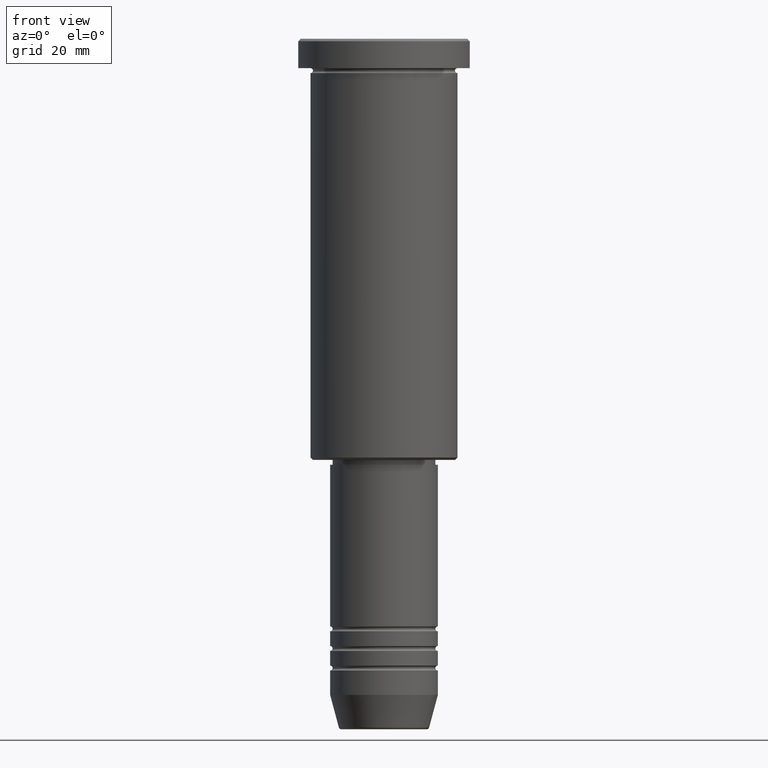
[diagram: clean part render]
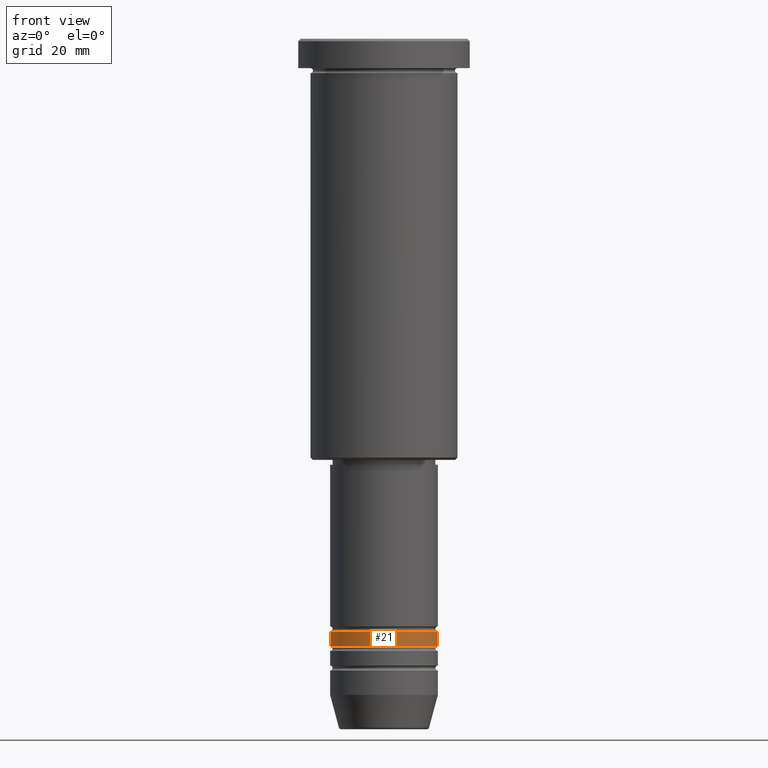
[diagram: same view with one face highlighted and labeled with its STEP entity id]
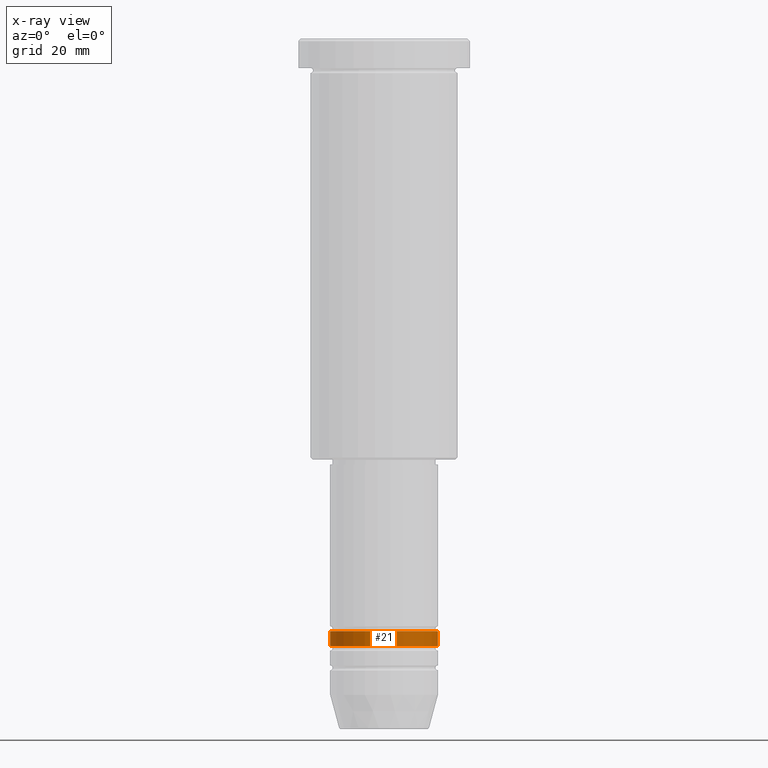
[diagram: x-ray of the same camera — body ghosted, the highlighted face saturated]
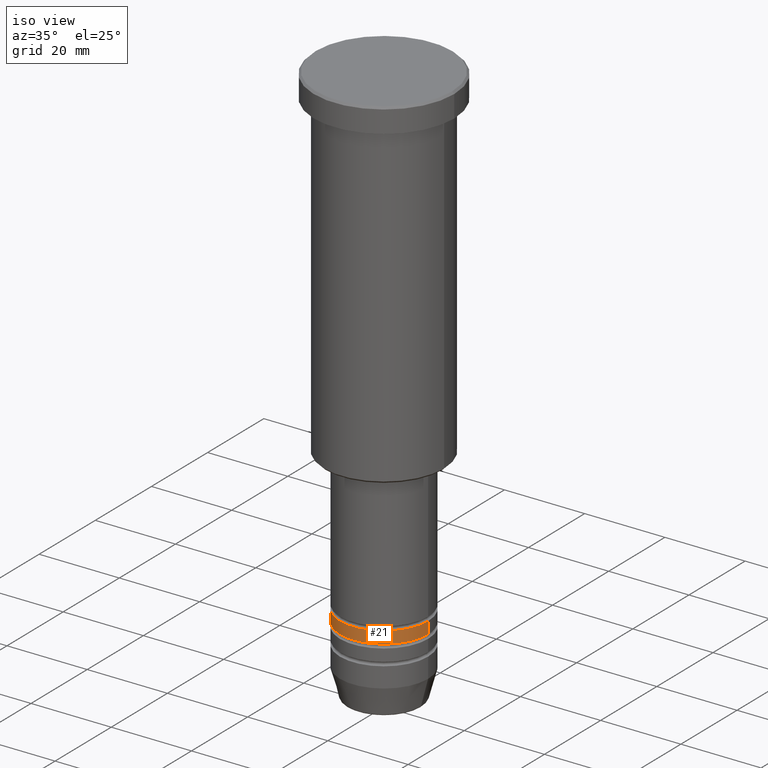
[diagram: same view with one face highlighted and labeled with its STEP entity id]
A machine part, front view. The second image highlights one B-rep face of the part: STEP entity #21.
The next image is the same camera in x-ray: the body ghosted, the highlighted face saturated — about 0% of this face is hidden behind the body in this view.
A second angle (iso view) of the same face is appended — the face is thin or edge-on in the first view.
In plain terms, the highlighted cylindrical surface (partial cylindrical patch) has radius 11 mm, axis along (-0, -0, 1).
Its self-contained STEP definition (entity closure, byte-faithful):
#18 = CARTESIAN_POINT ( 'NONE',  ( -11.00000000000000000, 1.347111479062088602E-15, -120.9999999999999005 ) ) ;
#21 = ADVANCED_FACE ( 'NONE', ( #780 ), #685, .T. ) ;
#46 = AXIS2_PLACEMENT_3D ( 'NONE', #735, #267, #104 ) ;
#58 = VERTEX_POINT ( 'NONE', #206 ) ;
#86 = ORIENTED_EDGE ( 'NONE', *, *, #829, .F. ) ;
#104 = DIRECTION ( 'NONE',  ( 1.000000000000000000, 0.000000000000000000, 0.000000000000000000 ) ) ;
#106 = ORIENTED_EDGE ( 'NONE', *, *, #1068, .F. ) ;
#128 = DIRECTION ( 'NONE',  ( -0.000000000000000000, -0.000000000000000000, 1.000000000000000000 ) ) ;
#130 = DIRECTION ( 'NONE',  ( 1.000000000000000000, 0.000000000000000000, 0.000000000000000000 ) ) ;
#206 = CARTESIAN_POINT ( 'NONE',  ( 11.00000000000000000, 0.000000000000000000, -120.9999999999999005 ) ) ;
#215 = EDGE_LOOP ( 'NONE', ( #106, #617, #950, #86 ) ) ;
#267 = DIRECTION ( 'NONE',  ( -0.000000000000000000, -0.000000000000000000, 1.000000000000000000 ) ) ;
#322 = CIRCLE ( 'NONE', #46, 11.00000000000000000 ) ;
#346 = VERTEX_POINT ( 'NONE', #18 ) ;
#409 = DIRECTION ( 'NONE',  ( -0.000000000000000000, -0.000000000000000000, 1.000000000000000000 ) ) ;
#487 = CARTESIAN_POINT ( 'NONE',  ( -11.00000000000000355, 1.347111479062088996E-15, -123.9999999999999147 ) ) ;
#584 = DIRECTION ( 'NONE',  ( 1.000000000000000000, 0.000000000000000000, 0.000000000000000000 ) ) ;
#590 = DIRECTION ( 'NONE',  ( -0.000000000000000000, -0.000000000000000000, 1.000000000000000000 ) ) ;
#617 = ORIENTED_EDGE ( 'NONE', *, *, #656, .T. ) ;
#656 = EDGE_CURVE ( 'NONE', #1015, #904, #1067, .T. ) ;
#672 = CARTESIAN_POINT ( 'NONE',  ( 0.000000000000000000, 0.000000000000000000, -123.9999999999999147 ) ) ;
#685 = CYLINDRICAL_SURFACE ( 'NONE', #910, 11.00000000000000178 ) ;
#735 = CARTESIAN_POINT ( 'NONE',  ( 0.000000000000000000, 0.000000000000000000, -120.9999999999999005 ) ) ;
#774 = CARTESIAN_POINT ( 'NONE',  ( -11.00000000000000178, 1.347111479062088602E-15, 0.000000000000000000 ) ) ;
#775 = CARTESIAN_POINT ( 'NONE',  ( 0.000000000000000000, 0.000000000000000000, 0.000000000000000000 ) ) ;
#780 = FACE_OUTER_BOUND ( 'NONE', #215, .T. ) ;
#829 = EDGE_CURVE ( 'NONE', #346, #58, #322, .T. ) ;
#860 = VECTOR ( 'NONE', #590, 1000.000000000000000 ) ;
#861 = LINE ( 'NONE', #774, #860 ) ;
#870 = CARTESIAN_POINT ( 'NONE',  ( 11.00000000000000178, 0.000000000000000000, 0.000000000000000000 ) ) ;
#880 = CARTESIAN_POINT ( 'NONE',  ( 11.00000000000000355, 0.000000000000000000, -123.9999999999999147 ) ) ;
#904 = VERTEX_POINT ( 'NONE', #880 ) ;
#910 = AXIS2_PLACEMENT_3D ( 'NONE', #775, #1121, #584 ) ;
#950 = ORIENTED_EDGE ( 'NONE', *, *, #964, .T. ) ;
#964 = EDGE_CURVE ( 'NONE', #904, #58, #965, .T. ) ;
#965 = LINE ( 'NONE', #870, #978 ) ;
#978 = VECTOR ( 'NONE', #128, 1000.000000000000000 ) ;
#1015 = VERTEX_POINT ( 'NONE', #487 ) ;
#1067 = CIRCLE ( 'NONE', #1124, 11.00000000000000355 ) ;
#1068 = EDGE_CURVE ( 'NONE', #1015, #346, #861, .T. ) ;
#1121 = DIRECTION ( 'NONE',  ( -0.000000000000000000, -0.000000000000000000, 1.000000000000000000 ) ) ;
#1124 = AXIS2_PLACEMENT_3D ( 'NONE', #672, #409, #130 ) ;